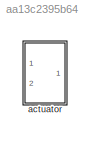
MODEL slx_aa13c2395b64
KIND model
CONFIG AbsTol = auto
CONFIG EnableMultiTasking = off
CONFIG FixedStep = auto
CONFIG MaxStep = auto
CONFIG MinStep = auto
CONFIG RelTol = 1e-3
CONFIG SampleTimeConstraint = Unconstrained
CONFIG SolverName = VariableStepAuto
CONFIG StartTime = 0.0
CONFIG StopTime = 10.0
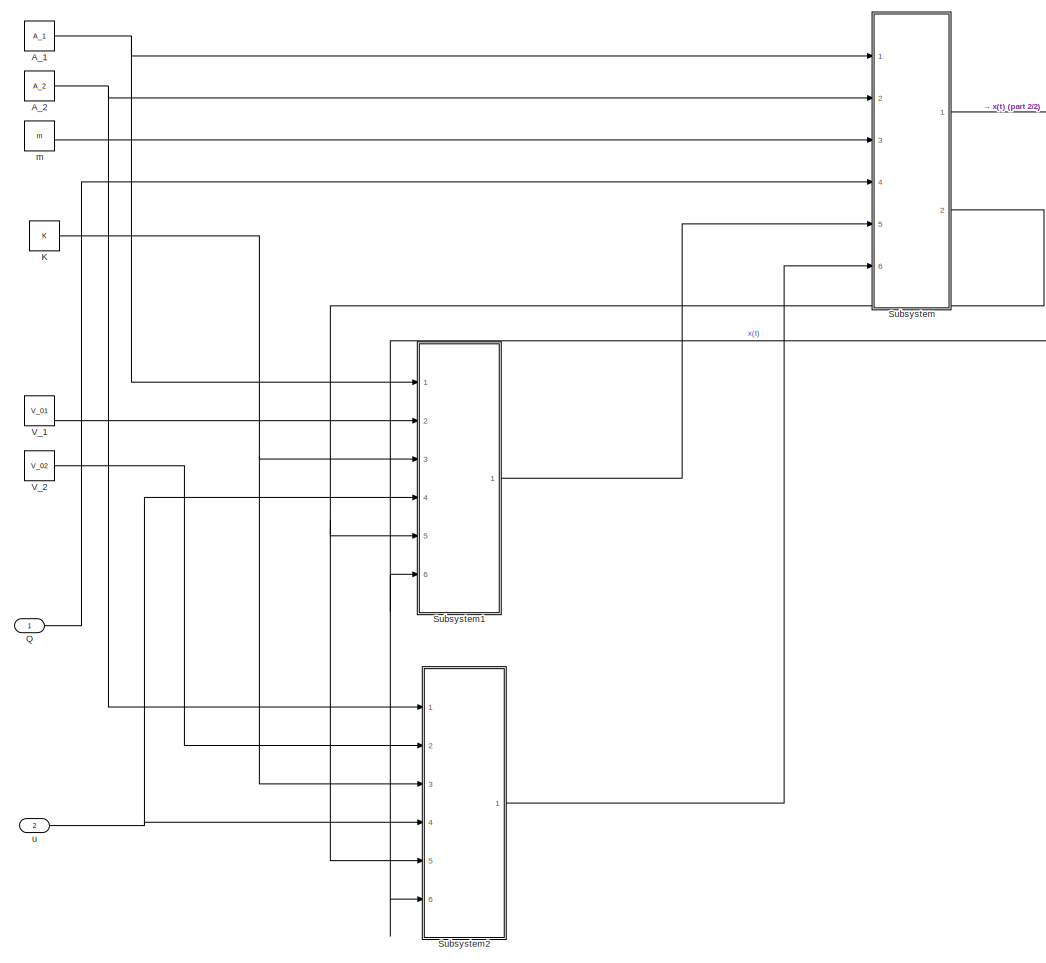
[diagram: actuator - part 1/2, most of the canvas]
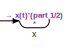
[diagram: actuator - part 2/2, top right region]
BLOCK [SubSystem] actuator
  NameLocation = right
  Ports = [2, 1]
  RequestExecContextInheritance = off
BLOCK [Constant] actuator/A_1
  Value = A_1
BLOCK [Constant] actuator/A_2
  Value = A_2
BLOCK [Constant] actuator/K
  Value = K
BLOCK [Inport] actuator/Q
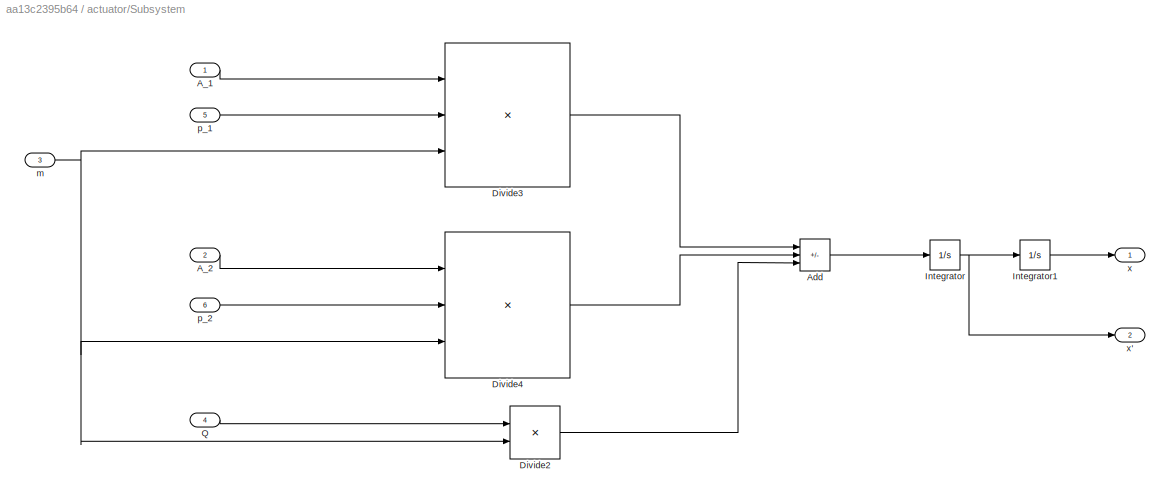
BLOCK [SubSystem] actuator/Subsystem
  Ports = [6, 2]
  RequestExecContextInheritance = off
BLOCK [Inport] actuator/Subsystem/A_1
BLOCK [Inport] actuator/Subsystem/A_2
  Port = 2
BLOCK [Sum] actuator/Subsystem/Add
  IconShape = rectangular
  Inputs = +-+
  Ports = [3, 1]
BLOCK [Product] actuator/Subsystem/Divide2
  Inputs = */
  Ports = [2, 1]
BLOCK [Product] actuator/Subsystem/Divide3
  Inputs = **/
  Ports = [3, 1]
BLOCK [Product] actuator/Subsystem/Divide4
  Inputs = **/
  Ports = [3, 1]
BLOCK [Integrator] actuator/Subsystem/Integrator
  Ports = [1, 1]
BLOCK [Integrator] actuator/Subsystem/Integrator1
  Ports = [1, 1]
BLOCK [Inport] actuator/Subsystem/Q
  Port = 4
BLOCK [Inport] actuator/Subsystem/m
  Port = 3
BLOCK [Inport] actuator/Subsystem/p_1
  Port = 5
BLOCK [Inport] actuator/Subsystem/p_2
  Port = 6
BLOCK [Outport] actuator/Subsystem/x
BLOCK [Outport] actuator/Subsystem/x'
  Port = 2
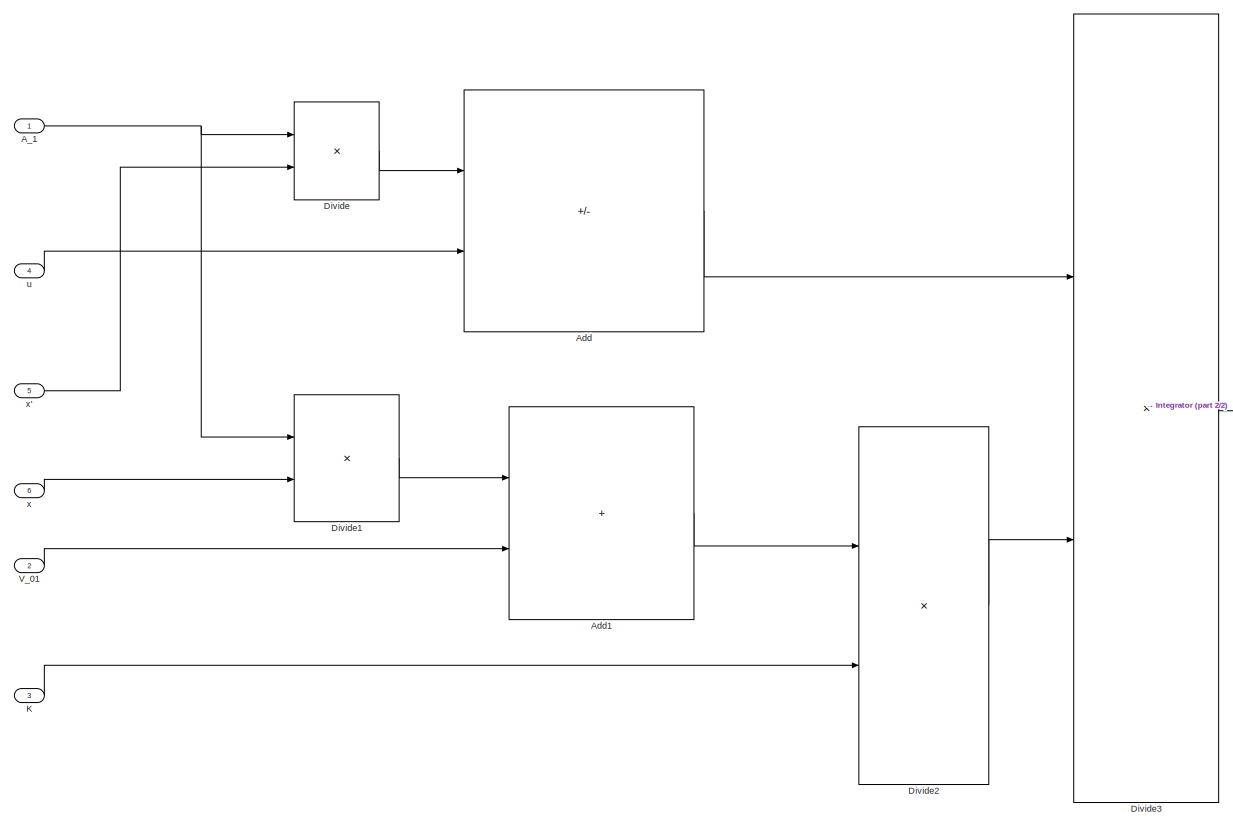
[diagram: actuator/Subsystem1 - part 1/2, most of the canvas]
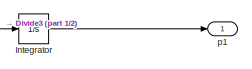
[diagram: actuator/Subsystem1 - part 2/2, middle right region]
BLOCK [SubSystem] actuator/Subsystem1
  Ports = [6, 1]
  RequestExecContextInheritance = off
BLOCK [Inport] actuator/Subsystem1/A_1
BLOCK [Sum] actuator/Subsystem1/Add
  IconShape = rectangular
  Inputs = -+
  Ports = [2, 1]
BLOCK [Sum] actuator/Subsystem1/Add1
  IconShape = rectangular
  Ports = [2, 1]
BLOCK [Product] actuator/Subsystem1/Divide
  Inputs = **
  Ports = [2, 1]
BLOCK [Product] actuator/Subsystem1/Divide1
  Inputs = **
  Ports = [2, 1]
BLOCK [Product] actuator/Subsystem1/Divide2
  Inputs = */
  Ports = [2, 1]
BLOCK [Product] actuator/Subsystem1/Divide3
  Inputs = */
  Ports = [2, 1]
BLOCK [Integrator] actuator/Subsystem1/Integrator
  Ports = [1, 1]
BLOCK [Inport] actuator/Subsystem1/K
  Port = 3
BLOCK [Inport] actuator/Subsystem1/V_01
  Port = 2
BLOCK [Outport] actuator/Subsystem1/p1
BLOCK [Inport] actuator/Subsystem1/u
  Port = 4
BLOCK [Inport] actuator/Subsystem1/x
  Port = 6
BLOCK [Inport] actuator/Subsystem1/x'
  Port = 5
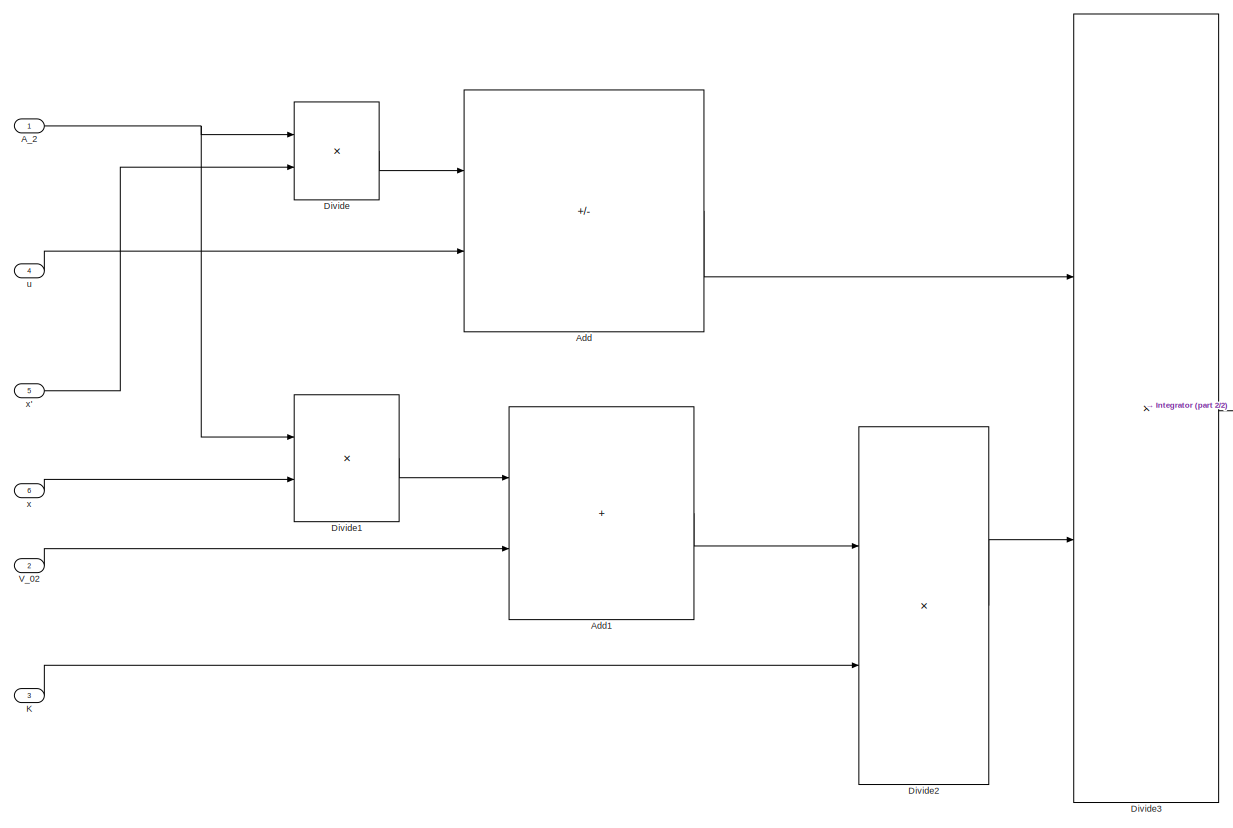
[diagram: actuator/Subsystem2 - part 1/2, most of the canvas]
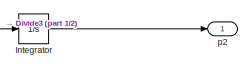
[diagram: actuator/Subsystem2 - part 2/2, middle right region]
BLOCK [SubSystem] actuator/Subsystem2
  Ports = [6, 1]
  RequestExecContextInheritance = off
BLOCK [Inport] actuator/Subsystem2/A_2
BLOCK [Sum] actuator/Subsystem2/Add
  IconShape = rectangular
  Inputs = -+
  Ports = [2, 1]
BLOCK [Sum] actuator/Subsystem2/Add1
  IconShape = rectangular
  Ports = [2, 1]
BLOCK [Product] actuator/Subsystem2/Divide
  Inputs = **
  Ports = [2, 1]
BLOCK [Product] actuator/Subsystem2/Divide1
  Inputs = **
  Ports = [2, 1]
BLOCK [Product] actuator/Subsystem2/Divide2
  Inputs = */
  Ports = [2, 1]
BLOCK [Product] actuator/Subsystem2/Divide3
  Inputs = */
  Ports = [2, 1]
BLOCK [Integrator] actuator/Subsystem2/Integrator
  Ports = [1, 1]
BLOCK [Inport] actuator/Subsystem2/K
  Port = 3
BLOCK [Inport] actuator/Subsystem2/V_02
  Port = 2
BLOCK [Outport] actuator/Subsystem2/p2
BLOCK [Inport] actuator/Subsystem2/u
  Port = 4
BLOCK [Inport] actuator/Subsystem2/x
  Port = 6
BLOCK [Inport] actuator/Subsystem2/x'
  Port = 5
BLOCK [Constant] actuator/V_1
  Value = V_01
BLOCK [Constant] actuator/V_2
  Value = V_02
BLOCK [Constant] actuator/m
  Value = m
BLOCK [Inport] actuator/u
  Port = 2
BLOCK [Outport] actuator/x
NET actuator/A_1:1 -> actuator/Subsystem1:1, actuator/Subsystem:1
NET actuator/A_2:1 -> actuator/Subsystem2:1, actuator/Subsystem:2
NET actuator/K:1 -> actuator/Subsystem1:3, actuator/Subsystem2:3
LINE actuator/Q:1 -> actuator/Subsystem:4
LINE actuator/Subsystem/A_1:1 -> actuator/Subsystem/Divide3:1
LINE actuator/Subsystem/A_2:1 -> actuator/Subsystem/Divide4:1
LINE actuator/Subsystem/Add:1 -> actuator/Subsystem/Integrator:1
LINE actuator/Subsystem/Divide2:1 -> actuator/Subsystem/Add:3
LINE actuator/Subsystem/Divide3:1 -> actuator/Subsystem/Add:1
LINE actuator/Subsystem/Divide4:1 -> actuator/Subsystem/Add:2
LINE actuator/Subsystem/Integrator1:1 -> actuator/Subsystem/x:1
NET actuator/Subsystem/Integrator:1 -> actuator/Subsystem/Integrator1:1, actuator/Subsystem/x':1
LINE actuator/Subsystem/Q:1 -> actuator/Subsystem/Divide2:1
NET actuator/Subsystem/m:1 -> actuator/Subsystem/Divide2:2, actuator/Subsystem/Divide3:3, actuator/Subsystem/Divide4:3
LINE actuator/Subsystem/p_1:1 -> actuator/Subsystem/Divide3:2
LINE actuator/Subsystem/p_2:1 -> actuator/Subsystem/Divide4:2
NET actuator/Subsystem1/A_1:1 -> actuator/Subsystem1/Divide1:1, actuator/Subsystem1/Divide:1
LINE actuator/Subsystem1/Add1:1 -> actuator/Subsystem1/Divide2:1
LINE actuator/Subsystem1/Add:1 -> actuator/Subsystem1/Divide3:1
LINE actuator/Subsystem1/Divide1:1 -> actuator/Subsystem1/Add1:1
LINE actuator/Subsystem1/Divide2:1 -> actuator/Subsystem1/Divide3:2
LINE actuator/Subsystem1/Divide3:1 -> actuator/Subsystem1/Integrator:1
LINE actuator/Subsystem1/Divide:1 -> actuator/Subsystem1/Add:1
LINE actuator/Subsystem1/Integrator:1 -> actuator/Subsystem1/p1:1
LINE actuator/Subsystem1/K:1 -> actuator/Subsystem1/Divide2:2
LINE actuator/Subsystem1/V_01:1 -> actuator/Subsystem1/Add1:2
LINE actuator/Subsystem1/u:1 -> actuator/Subsystem1/Add:2
LINE actuator/Subsystem1/x':1 -> actuator/Subsystem1/Divide:2
LINE actuator/Subsystem1/x:1 -> actuator/Subsystem1/Divide1:2
LINE actuator/Subsystem1:1 -> actuator/Subsystem:5
NET actuator/Subsystem2/A_2:1 -> actuator/Subsystem2/Divide1:1, actuator/Subsystem2/Divide:1
LINE actuator/Subsystem2/Add1:1 -> actuator/Subsystem2/Divide2:1
LINE actuator/Subsystem2/Add:1 -> actuator/Subsystem2/Divide3:1
LINE actuator/Subsystem2/Divide1:1 -> actuator/Subsystem2/Add1:1
LINE actuator/Subsystem2/Divide2:1 -> actuator/Subsystem2/Divide3:2
LINE actuator/Subsystem2/Divide3:1 -> actuator/Subsystem2/Integrator:1
LINE actuator/Subsystem2/Divide:1 -> actuator/Subsystem2/Add:1
LINE actuator/Subsystem2/Integrator:1 -> actuator/Subsystem2/p2:1
LINE actuator/Subsystem2/K:1 -> actuator/Subsystem2/Divide2:2
LINE actuator/Subsystem2/V_02:1 -> actuator/Subsystem2/Add1:2
LINE actuator/Subsystem2/u:1 -> actuator/Subsystem2/Add:2
LINE actuator/Subsystem2/x':1 -> actuator/Subsystem2/Divide:2
LINE actuator/Subsystem2/x:1 -> actuator/Subsystem2/Divide1:2
LINE actuator/Subsystem2:1 -> actuator/Subsystem:6
NET actuator/Subsystem:1 -> actuator/Subsystem1:6, actuator/Subsystem2:6, actuator/x:1
NET actuator/Subsystem:2 -> actuator/Subsystem1:5, actuator/Subsystem2:5
LINE actuator/V_1:1 -> actuator/Subsystem1:2
LINE actuator/V_2:1 -> actuator/Subsystem2:2
LINE actuator/m:1 -> actuator/Subsystem:3
NET actuator/u:1 -> actuator/Subsystem1:4, actuator/Subsystem2:4
note: NET lines group one-source signal fan-out (src -> all destinations, sorted); 1:1 wires keep LINE
